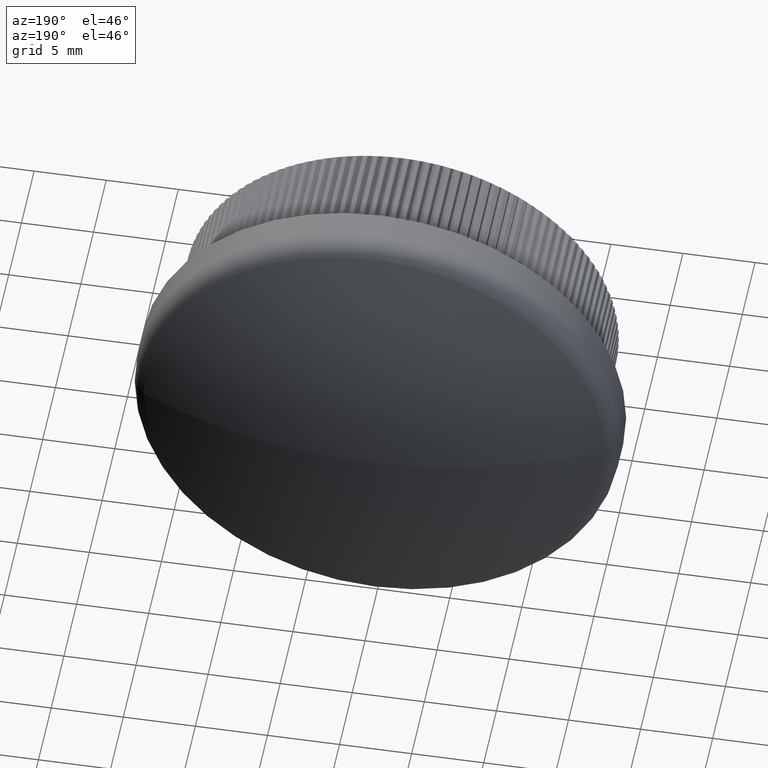
[diagram: clean part render]
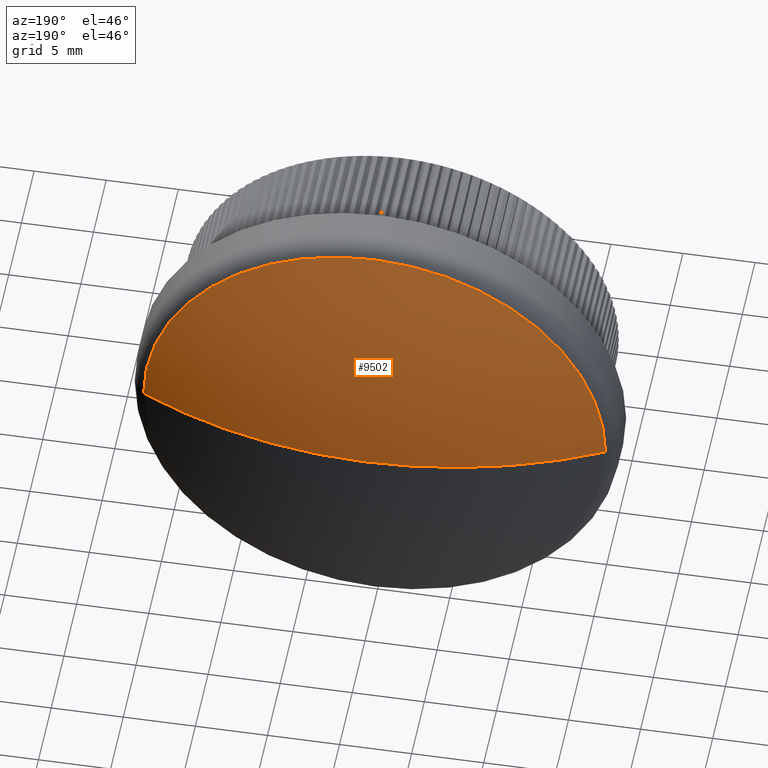
[diagram: same view with one face highlighted and labeled with its STEP entity id]
A machine part, auxiliary view. The second image highlights one B-rep face of the part: STEP entity #9502.
In plain terms, the highlighted spherical surface has radius 35.9003 mm.
Its self-contained STEP definition (entity closure, byte-faithful):
#46 = CIRCLE ( 'NONE', #480, 35.90029761904770600 ) ;
#480 = AXIS2_PLACEMENT_3D ( 'NONE', #4869, #20974, #2906 ) ;
#1541 = DIRECTION ( 'NONE',  ( 1.000000000000000000, 0.0000000000000000000, 0.0000000000000000000 ) ) ;
#2115 = CARTESIAN_POINT ( 'NONE',  ( 0.0000000000000000000, 11.22776762478764600, 0.0000000000000000000 ) ) ;
#2906 = DIRECTION ( 'NONE',  ( -1.000000000000000000, 0.0000000000000000000, 0.0000000000000000000 ) ) ;
#4722 = DIRECTION ( 'NONE',  ( 1.000000000000000000, 0.0000000000000000000, -1.224646799147353200E-016 ) ) ;
#4869 = CARTESIAN_POINT ( 'NONE',  ( 0.0000000000000000000, -20.90029761904771300, 0.0000000000000000000 ) ) ;
#5437 = CARTESIAN_POINT ( 'NONE',  ( 2.012665719586202600E-015, 11.22776762478764600, 16.01932560453346000 ) ) ;
#5618 = CIRCLE ( 'NONE', #26361, 35.90029761904770600 ) ;
#6606 = DIRECTION ( 'NONE',  ( 0.0000000000000000000, 1.000000000000000000, 0.0000000000000000000 ) ) ;
#7309 = ORIENTED_EDGE ( 'NONE', *, *, #22009, .T. ) ;
#7984 = DIRECTION ( 'NONE',  ( 0.0000000000000000000, 0.0000000000000000000, 1.000000000000000000 ) ) ;
#7986 = CARTESIAN_POINT ( 'NONE',  ( 16.01932560453345300, 11.22776762478764600, 0.0000000000000000000 ) ) ;
#8296 = FACE_OUTER_BOUND ( 'NONE', #9309, .T. ) ;
#8572 = AXIS2_PLACEMENT_3D ( 'NONE', #11717, #7984, #1541 ) ;
#9020 = ORIENTED_EDGE ( 'NONE', *, *, #21098, .T. ) ;
#9309 = EDGE_LOOP ( 'NONE', ( #21429, #7309, #20622, #9020 ) ) ;
#9502 = ADVANCED_FACE ( 'NONE', ( #8296 ), #25887, .T. ) ;
#10321 = DIRECTION ( 'NONE',  ( 0.0000000000000000000, 1.000000000000000000, 0.0000000000000000000 ) ) ;
#11717 = CARTESIAN_POINT ( 'NONE',  ( 0.0000000000000000000, -20.90029761904771300, 0.0000000000000000000 ) ) ;
#12376 = CIRCLE ( 'NONE', #22157, 16.01932560453346000 ) ;
#12947 = CARTESIAN_POINT ( 'NONE',  ( 0.0000000000000000000, -20.90029761904771300, 0.0000000000000000000 ) ) ;
#13453 = CARTESIAN_POINT ( 'NONE',  ( 2.198259228380206000E-015, 14.99999999999999300, 0.0000000000000000000 ) ) ;
#13667 = VERTEX_POINT ( 'NONE', #13453 ) ;
#14990 = CARTESIAN_POINT ( 'NONE',  ( 0.0000000000000000000, 11.22776762478764600, 0.0000000000000000000 ) ) ;
#15075 = DIRECTION ( 'NONE',  ( 0.0000000000000000000, 0.0000000000000000000, -1.000000000000000000 ) ) ;
#15172 = VERTEX_POINT ( 'NONE', #5437 ) ;
#17309 = DIRECTION ( 'NONE',  ( 1.224646799147353200E-016, -0.0000000000000000000, 1.000000000000000000 ) ) ;
#20536 = DIRECTION ( 'NONE',  ( 0.0000000000000000000, 0.0000000000000000000, -1.000000000000000000 ) ) ;
#20622 = ORIENTED_EDGE ( 'NONE', *, *, #25398, .T. ) ;
#20702 = EDGE_CURVE ( 'NONE', #13667, #25793, #46, .T. ) ;
#20974 = DIRECTION ( 'NONE',  ( 0.0000000000000000000, 0.0000000000000000000, -1.000000000000000000 ) ) ;
#21098 = EDGE_CURVE ( 'NONE', #15172, #25793, #24406, .T. ) ;
#21429 = ORIENTED_EDGE ( 'NONE', *, *, #20702, .F. ) ;
#22009 = EDGE_CURVE ( 'NONE', #13667, #26454, #5618, .T. ) ;
#22157 = AXIS2_PLACEMENT_3D ( 'NONE', #2115, #10321, #20536 ) ;
#23135 = AXIS2_PLACEMENT_3D ( 'NONE', #14990, #6606, #15075 ) ;
#23163 = CARTESIAN_POINT ( 'NONE',  ( -16.01932560453345300, 11.22776762478764600, 1.961801582609113400E-015 ) ) ;
#24406 = CIRCLE ( 'NONE', #23135, 16.01932560453346000 ) ;
#25398 = EDGE_CURVE ( 'NONE', #26454, #15172, #12376, .T. ) ;
#25793 = VERTEX_POINT ( 'NONE', #7986 ) ;
#25887 = SPHERICAL_SURFACE ( 'NONE', #8572, 35.90029761904770600 ) ;
#26361 = AXIS2_PLACEMENT_3D ( 'NONE', #12947, #17309, #4722 ) ;
#26454 = VERTEX_POINT ( 'NONE', #23163 ) ;